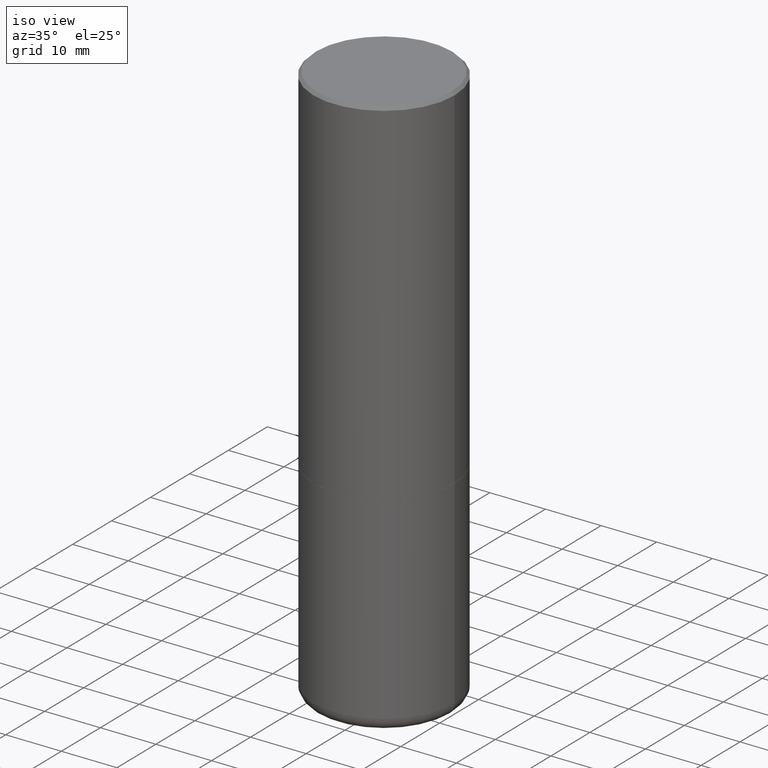
[diagram: clean part render]
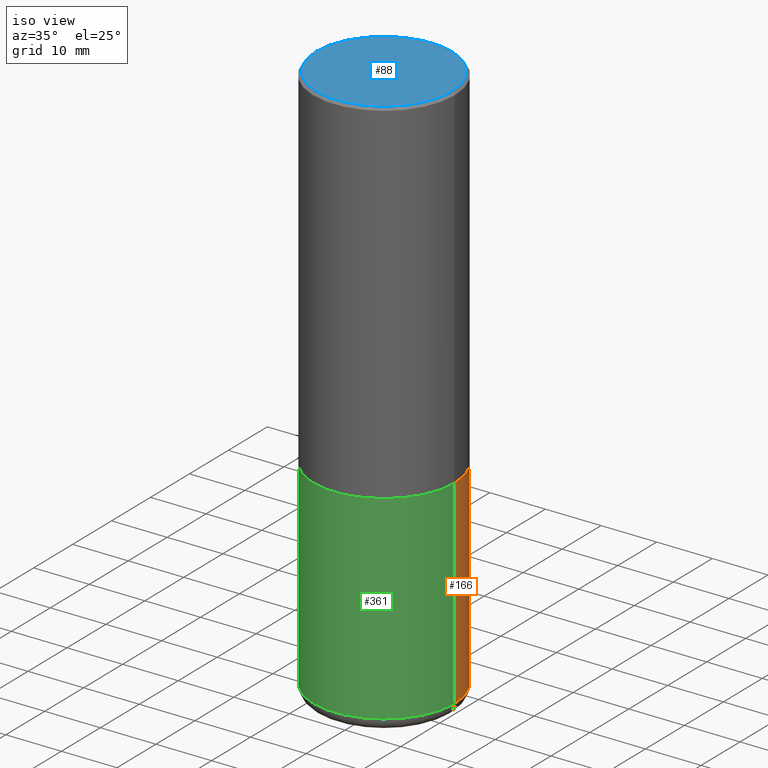
[diagram: same view with three faces highlighted in distinct colors, each labeled with its STEP entity id]
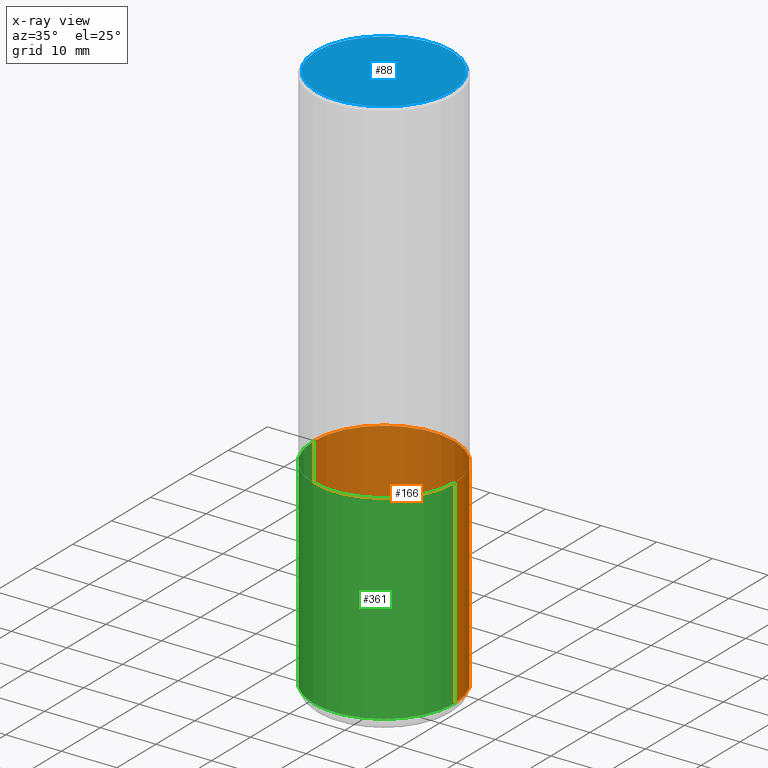
[diagram: x-ray of the same camera — body ghosted, the three highlighted faces saturated]
A machine part, iso view with three faces highlighted in distinct colors.
The next image is the same camera in x-ray (body ghosted, the three faces saturated) — at least one of them is partly hidden behind the body in this view.
Their STEP definitions:

[orange] entity #166 — the highlighted cylindrical surface (partial cylindrical patch) has radius 12.7 mm, axis along (-0, 0, 1).
#13 = DIRECTION ( 'NONE',  ( -2.445468806185136597E-29, 3.491481338843145583E-15, 1.000000000000000000 ) ) ;
#24 = ORIENTED_EDGE ( 'NONE', *, *, #306, .F. ) ;
#26 = AXIS2_PLACEMENT_3D ( 'NONE', #422, #13, #419 ) ;
#36 = DIRECTION ( 'NONE',  ( -2.445468806185136877E-29, 3.491481338843145188E-15, 1.000000000000000000 ) ) ;
#55 = CYLINDRICAL_SURFACE ( 'NONE', #26, 0.5000000000000000000 ) ;
#63 = EDGE_CURVE ( 'NONE', #416, #369, #313, .T. ) ;
#86 = VERTEX_POINT ( 'NONE', #246 ) ;
#91 = VERTEX_POINT ( 'NONE', #354 ) ;
#97 = AXIS2_PLACEMENT_3D ( 'NONE', #167, #337, #195 ) ;
#107 = LINE ( 'NONE', #323, #152 ) ;
#108 = DIRECTION ( 'NONE',  ( 1.000000000000000000, -6.982962677686266711E-15, 0.000000000000000000 ) ) ;
#114 = CIRCLE ( 'NONE', #97, 0.5000000000000000000 ) ;
#143 = EDGE_CURVE ( 'NONE', #86, #91, #107, .T. ) ;
#152 = VECTOR ( 'NONE', #292, 39.37007874015748143 ) ;
#166 = ADVANCED_FACE ( 'NONE', ( #385 ), #55, .T. ) ;
#167 = CARTESIAN_POINT ( 'NONE',  ( 6.113672015462842613E-29, -8.728703347107864943E-15, -2.500000000000000000 ) ) ;
#180 = VECTOR ( 'NONE', #36, 39.37007874015748143 ) ;
#181 = ORIENTED_EDGE ( 'NONE', *, *, #63, .T. ) ;
#195 = DIRECTION ( 'NONE',  ( 1.000000000000000000, -6.982962677686269077E-15, 0.000000000000000000 ) ) ;
#244 = CARTESIAN_POINT ( 'NONE',  ( -0.5000000000000000000, 3.552713678800500929E-15, -2.459467545127452891E-29 ) ) ;
#246 = CARTESIAN_POINT ( 'NONE',  ( 0.5000000000000000000, -1.714360401956452473E-14, -3.910123341872087988 ) ) ;
#292 = DIRECTION ( 'NONE',  ( -2.445468806185136877E-29, 3.491481338843145188E-15, 1.000000000000000000 ) ) ;
#306 = EDGE_CURVE ( 'NONE', #91, #369, #114, .T. ) ;
#313 = LINE ( 'NONE', #244, #180 ) ;
#323 = CARTESIAN_POINT ( 'NONE',  ( 0.5000000000000000000, -3.491481338843133355E-15, 2.438088387897967896E-29 ) ) ;
#337 = DIRECTION ( 'NONE',  ( -2.445468806185136597E-29, 3.491481338843145583E-15, 1.000000000000000000 ) ) ;
#347 = DIRECTION ( 'NONE',  ( -2.445468806185136597E-29, 3.491481338843145583E-15, 1.000000000000000000 ) ) ;
#350 = CARTESIAN_POINT ( 'NONE',  ( -0.5000000000000000000, -7.637699335114127230E-15, -3.910123341872087988 ) ) ;
#354 = CARTESIAN_POINT ( 'NONE',  ( 0.5000000000000000000, -1.222018468595099830E-14, -2.500000000000000000 ) ) ;
#362 = AXIS2_PLACEMENT_3D ( 'NONE', #371, #347, #108 ) ;
#369 = VERTEX_POINT ( 'NONE', #388 ) ;
#371 = CARTESIAN_POINT ( 'NONE',  ( 9.562084660884571289E-29, -1.365212268072139138E-14, -3.910123341872087988 ) ) ;
#377 = EDGE_LOOP ( 'NONE', ( #427, #181, #24, #420 ) ) ;
#385 = FACE_OUTER_BOUND ( 'NONE', #377, .T. ) ;
#388 = CARTESIAN_POINT ( 'NONE',  ( -0.5000000000000000000, -7.637699335114127230E-15, -2.500000000000000000 ) ) ;
#402 = EDGE_CURVE ( 'NONE', #86, #416, #442, .T. ) ;
#416 = VERTEX_POINT ( 'NONE', #350 ) ;
#419 = DIRECTION ( 'NONE',  ( 1.000000000000000000, -6.982962677686266711E-15, 4.876176775795935793E-29 ) ) ;
#420 = ORIENTED_EDGE ( 'NONE', *, *, #143, .F. ) ;
#422 = CARTESIAN_POINT ( 'NONE',  ( 0.000000000000000000, 0.000000000000000000, 0.000000000000000000 ) ) ;
#427 = ORIENTED_EDGE ( 'NONE', *, *, #402, .T. ) ;
#442 = CIRCLE ( 'NONE', #362, 0.5000000000000000000 ) ;

[blue] entity #88 — the highlighted planar face has unit normal (0, -0, -1).
#15 = DIRECTION ( 'NONE',  ( -1.000000000000000000, 6.982962677686265922E-15, -4.876176775795935793E-29 ) ) ;
#17 = EDGE_CURVE ( 'NONE', #368, #83, #281, .T. ) ;
#40 = CARTESIAN_POINT ( 'NONE',  ( -3.131554243005659264E-46, 4.471029511141341874E-32, 1.280553747030123384E-17 ) ) ;
#66 = AXIS2_PLACEMENT_3D ( 'NONE', #370, #257, #15 ) ;
#83 = VERTEX_POINT ( 'NONE', #99 ) ;
#88 = ADVANCED_FACE ( 'NONE', ( #366 ), #408, .F. ) ;
#90 = AXIS2_PLACEMENT_3D ( 'NONE', #40, #439, #437 ) ;
#99 = CARTESIAN_POINT ( 'NONE',  ( -0.4799999999999996492, 3.386736898677836830E-15, 1.280553747027767124E-17 ) ) ;
#117 = ORIENTED_EDGE ( 'NONE', *, *, #191, .T. ) ;
#140 = ORIENTED_EDGE ( 'NONE', *, *, #17, .T. ) ;
#187 = CARTESIAN_POINT ( 'NONE',  ( -3.131554243005659264E-46, 4.471029511141341874E-32, 1.280553747030123384E-17 ) ) ;
#191 = EDGE_CURVE ( 'NONE', #83, #368, #432, .T. ) ;
#251 = DIRECTION ( 'NONE',  ( -2.445468806185136597E-29, 3.491481338843145583E-15, 1.000000000000000000 ) ) ;
#257 = DIRECTION ( 'NONE',  ( 2.438088387897960049E-29, -3.491481338843145188E-15, -1.000000000000000000 ) ) ;
#268 = AXIS2_PLACEMENT_3D ( 'NONE', #187, #251, #411 ) ;
#281 = CIRCLE ( 'NONE', #90, 0.4799999999999996492 ) ;
#296 = EDGE_LOOP ( 'NONE', ( #117, #140 ) ) ;
#324 = CARTESIAN_POINT ( 'NONE',  ( 0.4799999999999996492, -3.396558832296479338E-15, 1.280553747032483033E-17 ) ) ;
#366 = FACE_OUTER_BOUND ( 'NONE', #296, .T. ) ;
#368 = VERTEX_POINT ( 'NONE', #324 ) ;
#370 = CARTESIAN_POINT ( 'NONE',  ( 3.351822085289405181E-15, 0.4799999999999996492, -1.669508273909558064E-15 ) ) ;
#408 = PLANE ( 'NONE',  #66 ) ;
#411 = DIRECTION ( 'NONE',  ( 1.000000000000000000, -6.982962677686267499E-15, 4.876036955247132767E-29 ) ) ;
#432 = CIRCLE ( 'NONE', #268, 0.4799999999999996492 ) ;
#437 = DIRECTION ( 'NONE',  ( 1.000000000000000000, -6.982962677686267499E-15, 4.876036955247132767E-29 ) ) ;
#439 = DIRECTION ( 'NONE',  ( -2.445468806185136597E-29, 3.491481338843145583E-15, 1.000000000000000000 ) ) ;

[green] entity #361 — the highlighted cylindrical surface (partial cylindrical patch) has radius 12.7 mm, axis along (-0, 0, 1).
#36 = DIRECTION ( 'NONE',  ( -2.445468806185136877E-29, 3.491481338843145188E-15, 1.000000000000000000 ) ) ;
#57 = ORIENTED_EDGE ( 'NONE', *, *, #245, .F. ) ;
#63 = EDGE_CURVE ( 'NONE', #416, #369, #313, .T. ) ;
#86 = VERTEX_POINT ( 'NONE', #246 ) ;
#91 = VERTEX_POINT ( 'NONE', #354 ) ;
#107 = LINE ( 'NONE', #323, #152 ) ;
#109 = EDGE_LOOP ( 'NONE', ( #248, #224, #287, #57 ) ) ;
#123 = CARTESIAN_POINT ( 'NONE',  ( 6.113672015462842613E-29, -8.728703347107864943E-15, -2.500000000000000000 ) ) ;
#143 = EDGE_CURVE ( 'NONE', #86, #91, #107, .T. ) ;
#152 = VECTOR ( 'NONE', #292, 39.37007874015748143 ) ;
#176 = CARTESIAN_POINT ( 'NONE',  ( 0.000000000000000000, 0.000000000000000000, 0.000000000000000000 ) ) ;
#180 = VECTOR ( 'NONE', #36, 39.37007874015748143 ) ;
#224 = ORIENTED_EDGE ( 'NONE', *, *, #438, .T. ) ;
#234 = DIRECTION ( 'NONE',  ( 1.000000000000000000, -6.982962677686269077E-15, 0.000000000000000000 ) ) ;
#244 = CARTESIAN_POINT ( 'NONE',  ( -0.5000000000000000000, 3.552713678800500929E-15, -2.459467545127452891E-29 ) ) ;
#245 = EDGE_CURVE ( 'NONE', #369, #91, #421, .T. ) ;
#246 = CARTESIAN_POINT ( 'NONE',  ( 0.5000000000000000000, -1.714360401956452473E-14, -3.910123341872087988 ) ) ;
#248 = ORIENTED_EDGE ( 'NONE', *, *, #63, .F. ) ;
#249 = DIRECTION ( 'NONE',  ( 1.000000000000000000, -6.982962677686266711E-15, 0.000000000000000000 ) ) ;
#260 = DIRECTION ( 'NONE',  ( -2.445468806185136597E-29, 3.491481338843145583E-15, 1.000000000000000000 ) ) ;
#264 = AXIS2_PLACEMENT_3D ( 'NONE', #176, #260, #380 ) ;
#275 = CARTESIAN_POINT ( 'NONE',  ( 9.562084660884571289E-29, -1.365212268072139138E-14, -3.910123341872087988 ) ) ;
#287 = ORIENTED_EDGE ( 'NONE', *, *, #143, .T. ) ;
#292 = DIRECTION ( 'NONE',  ( -2.445468806185136877E-29, 3.491481338843145188E-15, 1.000000000000000000 ) ) ;
#305 = CIRCLE ( 'NONE', #401, 0.5000000000000000000 ) ;
#313 = LINE ( 'NONE', #244, #180 ) ;
#315 = CYLINDRICAL_SURFACE ( 'NONE', #264, 0.5000000000000000000 ) ;
#323 = CARTESIAN_POINT ( 'NONE',  ( 0.5000000000000000000, -3.491481338843133355E-15, 2.438088387897967896E-29 ) ) ;
#342 = AXIS2_PLACEMENT_3D ( 'NONE', #123, #398, #234 ) ;
#350 = CARTESIAN_POINT ( 'NONE',  ( -0.5000000000000000000, -7.637699335114127230E-15, -3.910123341872087988 ) ) ;
#352 = FACE_OUTER_BOUND ( 'NONE', #109, .T. ) ;
#354 = CARTESIAN_POINT ( 'NONE',  ( 0.5000000000000000000, -1.222018468595099830E-14, -2.500000000000000000 ) ) ;
#361 = ADVANCED_FACE ( 'NONE', ( #352 ), #315, .T. ) ;
#369 = VERTEX_POINT ( 'NONE', #388 ) ;
#376 = DIRECTION ( 'NONE',  ( -2.445468806185136597E-29, 3.491481338843145583E-15, 1.000000000000000000 ) ) ;
#380 = DIRECTION ( 'NONE',  ( 1.000000000000000000, -6.982962677686266711E-15, 4.876176775795935793E-29 ) ) ;
#388 = CARTESIAN_POINT ( 'NONE',  ( -0.5000000000000000000, -7.637699335114127230E-15, -2.500000000000000000 ) ) ;
#398 = DIRECTION ( 'NONE',  ( -2.445468806185136597E-29, 3.491481338843145583E-15, 1.000000000000000000 ) ) ;
#401 = AXIS2_PLACEMENT_3D ( 'NONE', #275, #376, #249 ) ;
#416 = VERTEX_POINT ( 'NONE', #350 ) ;
#421 = CIRCLE ( 'NONE', #342, 0.5000000000000000000 ) ;
#438 = EDGE_CURVE ( 'NONE', #416, #86, #305, .T. ) ;